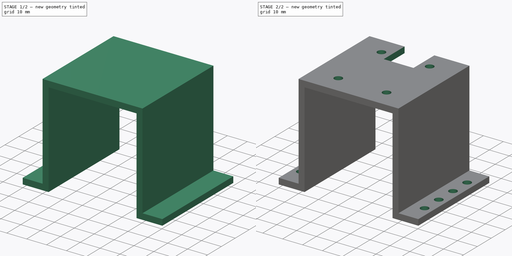
[diagram: build sequence overview — one tinted view per stage of 2, left to right]
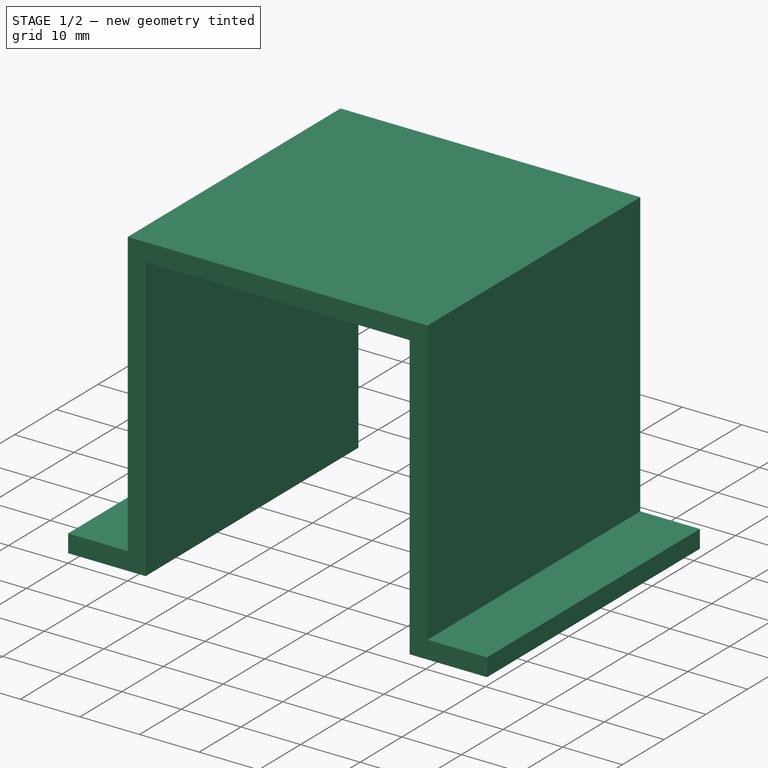
[diagram: stage 1 of 2 — iso view after this stage's code; geometry added in this stage tinted green]
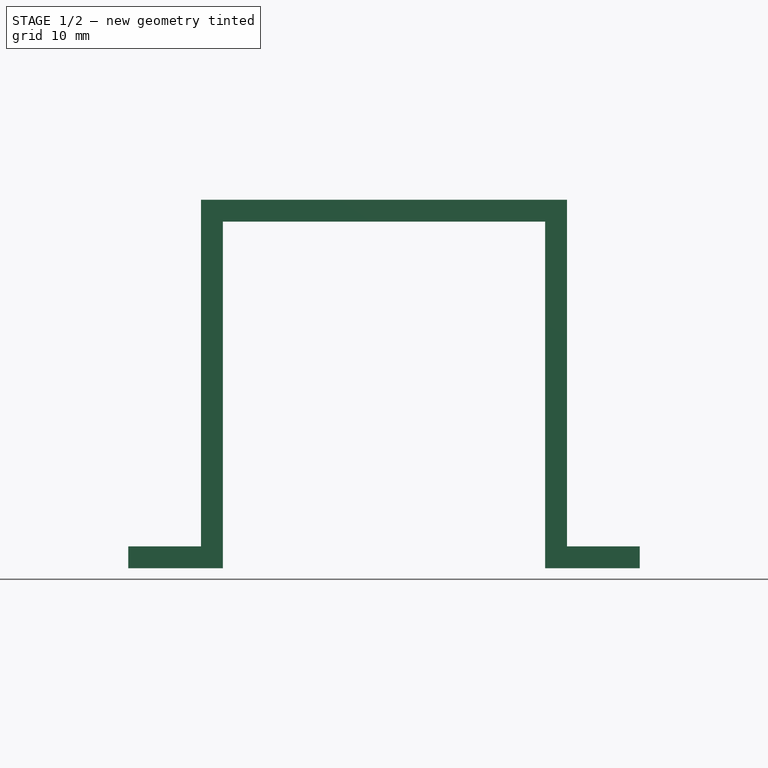
[diagram: stage 1 of 2 — front view after this stage's code; geometry added in this stage tinted green]
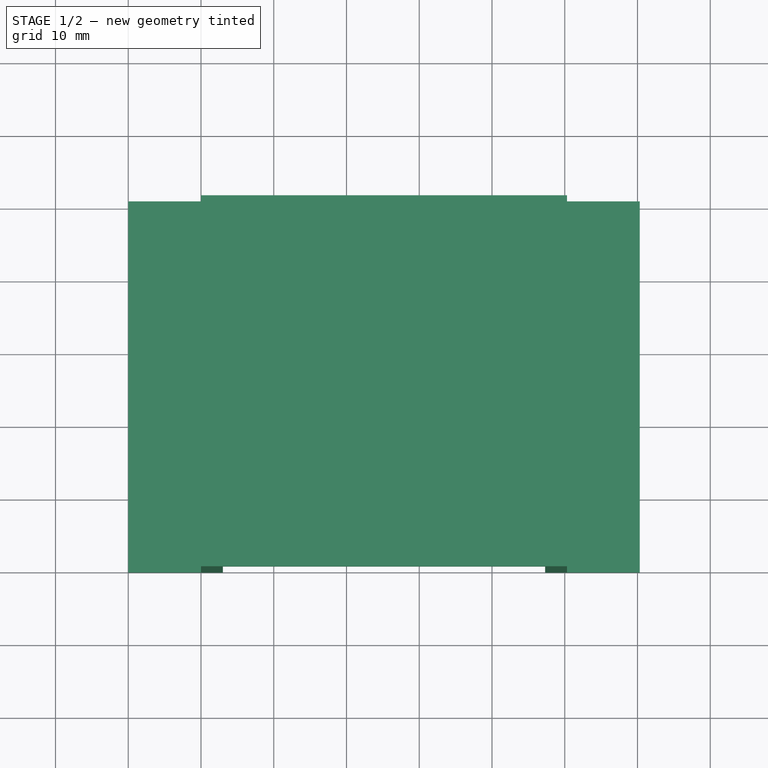
[diagram: stage 1 of 2 — top view after this stage's code; geometry added in this stage tinted green]
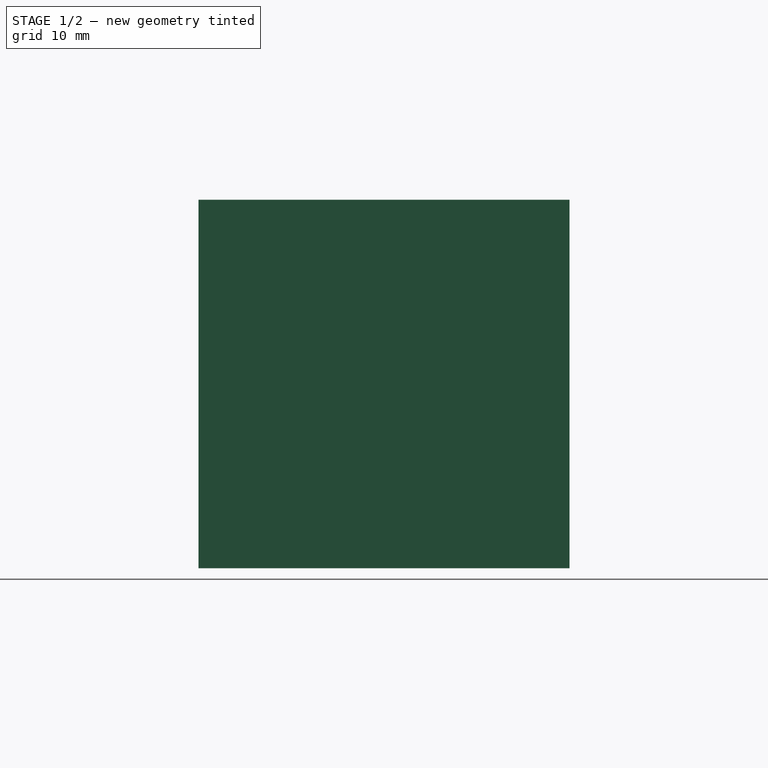
[diagram: stage 1 of 2 — right view after this stage's code; geometry added in this stage tinted green]
FCSTD DOCUMENT  (FreeCAD 0.16R6707 (Git))
Label: support_support_moteur
License: All rights reserved
LicenseURL: http://en.wikipedia.org/wiki/All_rights_reserved
objects: Drawing::FeatureViewPart×4, Sketcher::SketchObject×3, PartDesign::Pocket×2, PartDesign::Pad×1, Drawing::FeaturePage×1
note: 9 computed .brp shape members not serialized (recipe doc carries the construction recipe); baked Part::Feature solids carry a one-line shape summary decoded from their .brp

FEATURE [Sketcher::SketchObject] Sketch
  sketch-geometry (4):
    g0: LineSegment StartX=0 StartY=0 StartZ=0 EndX=70.3 EndY=0 EndZ=0
    g1: LineSegment StartX=70.3 StartY=0 StartZ=0 EndX=70.3 EndY=51 EndZ=0
    g2: LineSegment StartX=70.3 StartY=51 StartZ=0 EndX=0 EndY=51 EndZ=0
    g3: LineSegment StartX=0 StartY=51 StartZ=0 EndX=0 EndY=0 EndZ=0
  constraints (11):
    c: Coincident(g0,g1)
    c: Coincident(g1,g2)
    c: Coincident(g2,g3)
    c: Coincident(g3,g0)
    c: Horizontal(g0)
    c: Horizontal(g2)
    c: Vertical(g1)
    c: Vertical(g3)
    c: Coincident(g0,g-1)
    c: Distance(g2) = 70.3
    c: Distance(g3) = 51
FEATURE [PartDesign::Pad] Pad
  Length = 50.65
  Length2 = 100
  Sketch = -> Sketch
  Type = 0
FEATURE [Sketcher::SketchObject] Sketch001
  Placement = pos=(0,0,0) rot=(1,0,0;1.5708rad)
  Support = -> Pad [Face1]
  sketch-geometry (15):
    g0: GeomPoint [constr] X=13 Y=0 Z=0
    g1: LineSegment StartX=13 StartY=0 StartZ=0 EndX=57.3 EndY=0 EndZ=0
    g2: LineSegment StartX=57.3 StartY=0 StartZ=0 EndX=57.3 EndY=47.65 EndZ=0
    g3: LineSegment StartX=57.3 StartY=47.65 StartZ=0 EndX=13 EndY=47.65 EndZ=0
    g4: LineSegment StartX=13 StartY=47.65 StartZ=0 EndX=13 EndY=0 EndZ=0
    g5: GeomPoint [constr] X=0 Y=3 Z=0
    g6: GeomPoint [constr] X=70.3 Y=3 Z=0
    g7: LineSegment StartX=0 StartY=3 StartZ=0 EndX=10 EndY=3 EndZ=0
    g8: LineSegment StartX=10 StartY=3 StartZ=0 EndX=10 EndY=50.65 EndZ=0
    g9: LineSegment StartX=10 StartY=50.65 StartZ=0 EndX=0 EndY=50.65 EndZ=0
    g10: LineSegment StartX=0 StartY=50.65 StartZ=0 EndX=0 EndY=3 EndZ=0
    g11: LineSegment StartX=70.3 StartY=3 StartZ=0 EndX=60.3 EndY=3 EndZ=0
    g12: LineSegment StartX=60.3 StartY=3 StartZ=0 EndX=60.3 EndY=50.65 EndZ=0
    g13: LineSegment StartX=60.3 StartY=50.65 StartZ=0 EndX=70.3 EndY=50.65 EndZ=0
    g14: LineSegment StartX=70.3 StartY=50.65 StartZ=0 EndX=70.3 EndY=3 EndZ=0
  constraints (39):
    c: PointOnObject(g0,g-1)
    c: DistanceX(g0) = 13
    c: Coincident(g1,g2)
    c: Coincident(g2,g3)
    c: Coincident(g3,g4)
    c: Coincident(g4,g1)
    c: Horizontal(g1)
    c: Horizontal(g3)
    c: Vertical(g2)
    c: Vertical(g4)
    c: Coincident(g1,g0)
    c: Distance(g2) = 47.65
    c: Distance(g3) = 44.3
    c: PointOnObject(g5,g-2)
    c: DistanceY(g6) = 3
    c: DistanceX(g1,g6) = 13
    c: DistanceY(g5) = 3
    c: Coincident(g7,g8)
    c: Coincident(g8,g9)
    c: Coincident(g9,g10)
    c: Coincident(g10,g7)
    c: Horizontal(g7)
    c: Horizontal(g9)
    c: Vertical(g8)
    c: Vertical(g10)
    c: Coincident(g7,g5)
    c: Distance(g9) = 10
    c: Coincident(g11,g12)
    c: Coincident(g12,g13)
    c: Coincident(g13,g14)
    c: Coincident(g14,g11)
    c: Horizontal(g11)
    c: Horizontal(g13)
    c: Vertical(g12)
    c: Vertical(g14)
    c: Coincident(g11,g6)
    c: Distance(g13) = 10
    c: Distance(g8) = 47.65
    c: Distance(g14) = 47.65
FEATURE [PartDesign::Pocket] Pocket
  Length = 5
  Sketch = -> Sketch001
  Type = 1
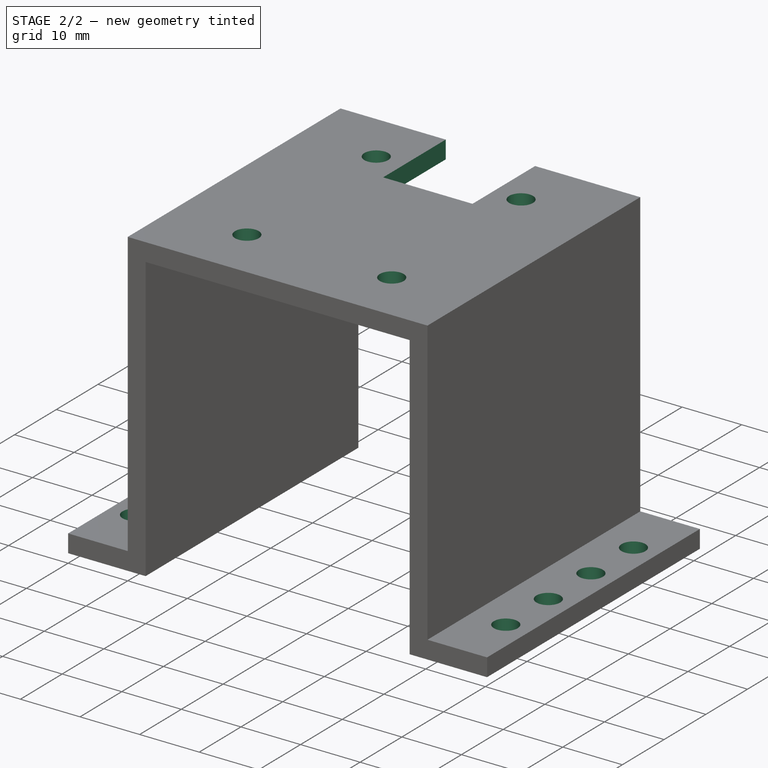
[diagram: stage 2 of 2 — iso view after this stage's code; geometry added in this stage tinted green]
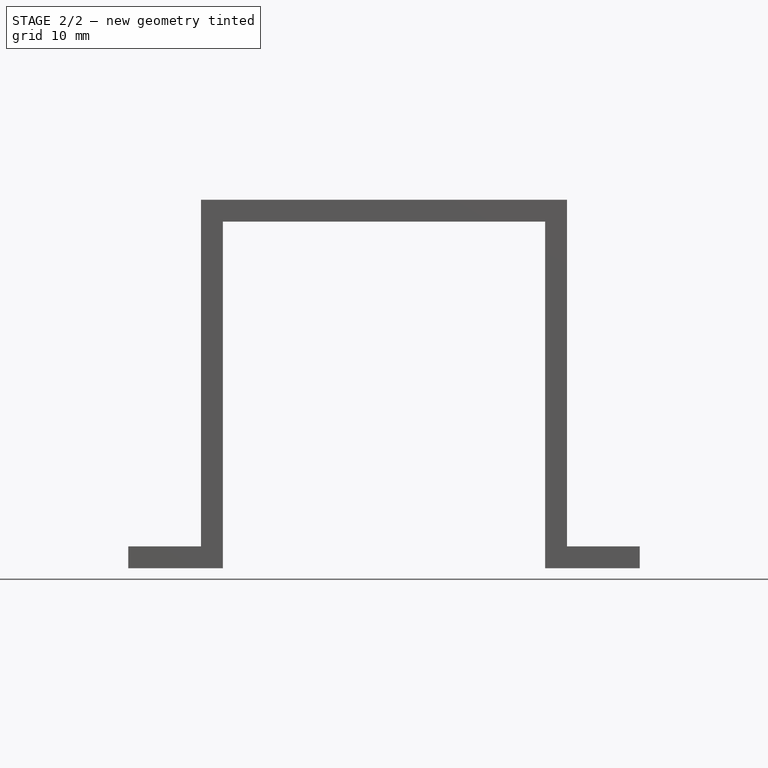
[diagram: stage 2 of 2 — front view after this stage's code; geometry added in this stage tinted green]
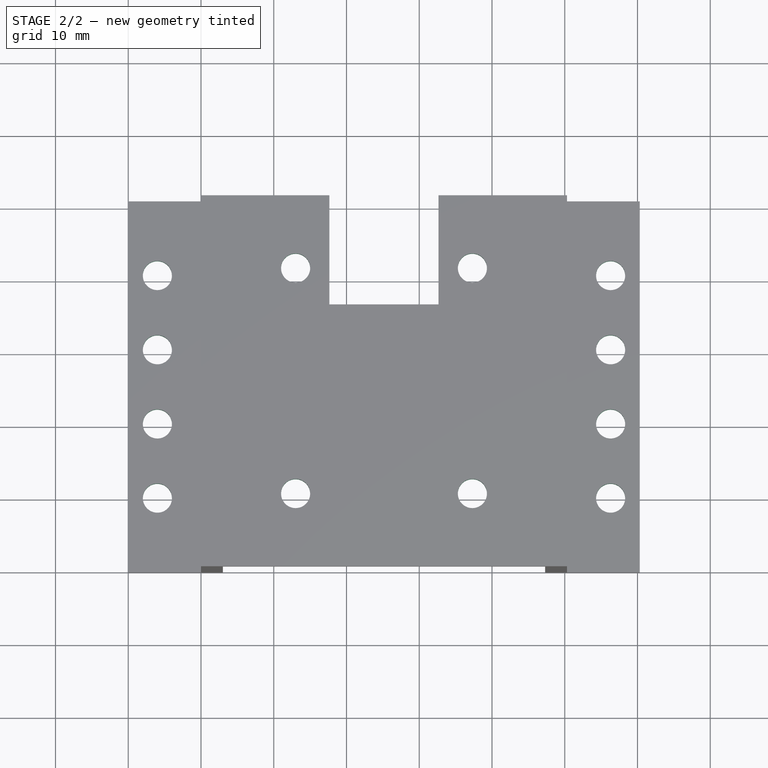
[diagram: stage 2 of 2 — top view after this stage's code; geometry added in this stage tinted green]
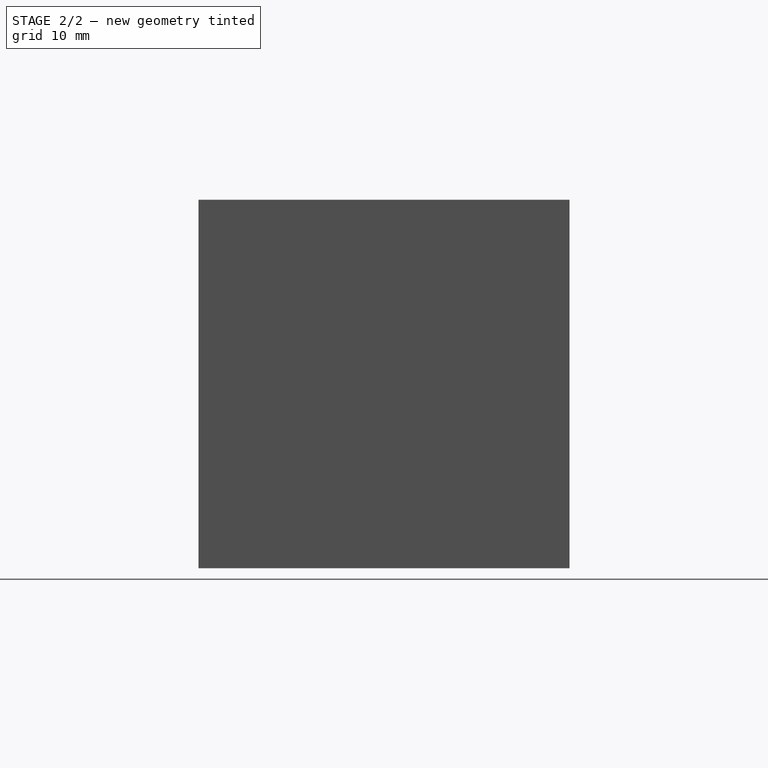
[diagram: stage 2 of 2 — right view after this stage's code; geometry added in this stage tinted green]
FEATURE [Sketcher::SketchObject] Sketch002
  Placement = pos=(0,0,50.65) rot=(0,0,1;0rad)
  Support = -> Pocket [Face10]
  sketch-geometry (30):
    g0: GeomPoint [constr] X=23 Y=10 Z=0
    g1: GeomPoint [constr] X=47.3 Y=10 Z=0
    g2: GeomPoint [constr] X=23 Y=41 Z=0
    g3: GeomPoint [constr] X=47.3 Y=41 Z=0
    g4: GeomPoint [constr] X=4 Y=40.8 Z=0
    g5: GeomPoint [constr] X=4 Y=30.6 Z=0
    g6: GeomPoint [constr] X=4 Y=20.4 Z=0
    g7: GeomPoint [constr] X=66.3 Y=40.8 Z=0
    g8: GeomPoint [constr] X=66.3 Y=30.6 Z=0
    g9: GeomPoint [constr] X=66.3 Y=20.4 Z=0
    g10: GeomPoint [constr] X=66.3 Y=10.2 Z=0
    g11: GeomPoint [constr] X=4 Y=10.2 Z=0
    g12: Circle CenterX=23 CenterY=41 CenterZ=0 NormalX=0 NormalY=0 NormalZ=1 Radius=2
    g13: Circle CenterX=47.3 CenterY=41 CenterZ=0 NormalX=0 NormalY=0 NormalZ=1 Radius=2
    g14: Circle CenterX=23 CenterY=10 CenterZ=0 NormalX=0 NormalY=0 NormalZ=1 Radius=2
    g15: Circle CenterX=47.3 CenterY=10 CenterZ=0 NormalX=0 NormalY=0 NormalZ=1 Radius=2
    g16: Circle CenterX=4 CenterY=40.8 CenterZ=0 NormalX=0 NormalY=0 NormalZ=1 Radius=2
    g17: Circle CenterX=4 CenterY=30.6 CenterZ=0 NormalX=0 NormalY=0 NormalZ=1 Radius=2
    g18: Circle CenterX=4 CenterY=20.4 CenterZ=0 NormalX=0 NormalY=0 NormalZ=1 Radius=2
    g19: Circle CenterX=4 CenterY=10.2 CenterZ=0 NormalX=0 NormalY=0 NormalZ=1 Radius=2
    g20: Circle CenterX=66.3 CenterY=40.8 CenterZ=0 NormalX=0 NormalY=0 NormalZ=1 Radius=2
    g21: Circle CenterX=66.3 CenterY=30.6 CenterZ=0 NormalX=0 NormalY=0 NormalZ=1 Radius=2
    g22: Circle CenterX=66.3 CenterY=20.4 CenterZ=0 NormalX=0 NormalY=0 NormalZ=1 Radius=2
    g23: Circle CenterX=66.3 CenterY=10.2 CenterZ=0 NormalX=0 NormalY=0 NormalZ=1 Radius=2
    g24: GeomPoint [constr] X=35.15 Y=51 Z=0
    g25: GeomPoint [constr] X=42.65 Y=51 Z=0
    g26: LineSegment StartX=42.65 StartY=51 StartZ=0 EndX=27.65 EndY=51 EndZ=0
    g27: LineSegment StartX=27.65 StartY=51 StartZ=0 EndX=27.65 EndY=36 EndZ=0
    g28: LineSegment StartX=27.65 StartY=36 StartZ=0 EndX=42.65 EndY=36 EndZ=0
    g29: LineSegment StartX=42.65 StartY=36 StartZ=0 EndX=42.65 EndY=51 EndZ=0
  constraints (63):
    c: DistanceY(g0) = 10
    c: DistanceY(g0,g2) = 31
    c: DistanceX(g2,g0) = 0
    c: DistanceY(g1) = 10
    c: DistanceY(g1,g3) = 31
    c: DistanceX(g3,g1) = 0
    c: DistanceX(g-1,g0) = 23
    c: DistanceX(g0,g1) = 24.3
    c: Coincident(g12,g2)
    c: Coincident(g13,g3)
    c: Coincident(g14,g0)
    c: Coincident(g15,g1)
    c: Radius(g12) = 2
    c: Radius(g13) = 2
    c: Radius(g14) = 2
    c: Radius(g15) = 2
    c: DistanceY(g11) = 10.2
    c: DistanceY(g11,g6) = 10.2
    c: DistanceY(g6,g5) = 10.2
    c: DistanceY(g5,g4) = 10.2
    c: DistanceY(g10) = 10.2
    c: DistanceY(g10,g9) = 10.2
    c: DistanceY(g9,g8) = 10.2
    c: DistanceY(g8,g7) = 10.2
    c: DistanceX(g4,g5) = 0
    c: DistanceX(g6,g5) = 0
    c: DistanceX(g11,g6) = 0
    c: DistanceX(g8,g7) = 0
    c: DistanceX(g8,g9) = 0
    c: DistanceX(g9,g10) = 0
    c: DistanceX(g-1,g11) = 4
    c: DistanceX(g10) = 66.3
    c: Coincident(g16,g4)
    c: Coincident(g17,g5)
    c: Coincident(g18,g6)
    c: Coincident(g19,g11)
    c: Coincident(g20,g7)
    c: Coincident(g21,g8)
    c: Coincident(g22,g9)
    c: Coincident(g23,g10)
    c: Radius(g16) = 2
    c: Radius(g17) = 2
    c: Radius(g18) = 2
    c: Radius(g19) = 2
    c: Radius(g20) = 2
    c: Radius(g21) = 2
    c: Radius(g22) = 2
    c: Radius(g23) = 2
    c: DistanceY(g24) = 51
    c: DistanceX(g24) = 35.15
    c: DistanceX(g24,g25) = 7.5
    c: DistanceY(g24,g25) = 0
    c: Coincident(g26,g27)
    c: Coincident(g27,g28)
    c: Coincident(g28,g29)
    c: Coincident(g29,g26)
    c: Horizontal(g26)
    c: Horizontal(g28)
    c: Vertical(g27)
    c: Vertical(g29)
    c: Coincident(g26,g25)
    c: Distance(g27) = 15
    c: Distance(g28) = 15
FEATURE [PartDesign::Pocket] Pocket001
  Length = 5
  Sketch = -> Sketch002
  Type = 1
FEATURE [Drawing::FeatureViewPart] Ortho  label="Ortho_0_0"
  Direction = (1,0,0)
  HiddenWidth = 0.15
  LineWidth = 0.35
  Rotation = -90
  ShowHiddenLines = false
  ShowSmoothLines = false
  Source = -> Pocket001
  Tolerance = 0.05
  ViewResult = <blob: 2202 chars omitted>
  Visible = true
  X = 102.9
  Y = 194.983
FEATURE [Drawing::FeatureViewPart] Ortho001  label="Ortho_0_1"
  Direction = (0,0,1)
  HiddenWidth = 0.15
  LineWidth = 0.35
  Rotation = 90
  ShowHiddenLines = false
  ShowSmoothLines = false
  Source = -> Pocket001
  Tolerance = 0.05
  ViewResult = <g id="Ortho_0_1"\n   transform="rotate(90,102.9,42.0167) translate(102.9,42.0167) scale(1,1)"\n  >\n<g   stroke="rgb(0, 0, 0)"\n   stroke-width="0.35"\n   stroke-linecap="butt"\n   stroke-linejoin="miter"\n   fill="none"\n   transform="scale(1,-1)"\n  >\n<path id= "1" d=" M 70.3 6.66134e-16 L 60.3 6.66134e-16 " />\n<path id= "2" d=" M 10 0 L 60.3 0 " />\n<path id= "3" d=" M 0 6.66134e-16 L 10 6.66134e-16 " />\n<path id= "4" d=" M 70.3 6.66134e-16 L 70.3 51 " />\n<path id= "5" d=" M 70.3 51 L 60.3 51 " />\n<circle cx ="66.3" cy ="30.6" r ="2" /><circle cx ="66.3" cy ="20.4" r ="2" /><circle cx ="66.3" cy ="10.2" r ="2" /><circle cx ="66.3" cy ="40.8" r ="2" /><path id= "10" d=" M 60.3 1.12466e-14 L 60.3 51 " />\n<path id= "11" d=" M 60.3 51 L 42.65 51 " />\n<path id= "12" d=" M 42.65 36 L 42.65 51 " />\n<path id= "13" d=" M 27.65 36 L 42.65 36 " />\n<path id= "14" d=" M 27.65 51 L 27.65 36 " />\n<path id= "15" d=" M 27.65 51 L 10 51 " />\n<path id= "16" d=" M 10 1.12466e-14 L 10 51 " />\n<circle cx ="47.3" cy ="41" r ="2" /><circle cx ="23" cy ="41" r ="2" /><circle cx ="23" cy ="10" r ="2" /><circle cx ="47.3" cy ="10" r ="2" /><path id= "21" d=" M 10 6.66134e-16 L 10 51 " />\n<path id= "22" d=" M 0 6.66134e-16 L 0 51 " />\n<path id= "23" d=" M 7.10543e-15 51 L 10 51 " />\n<circle cx ="4" cy ="10.2" r ="2" /><circle cx ="4" cy ="20.4" r ="2" /><circle cx ="4" cy ="40.8" r ="2" /><circle cx ="4" cy ="30.6" r ="2" /></g>\n</g>
  Visible = true
  X = 102.9
  Y = 42.0167
FEATURE [Drawing::FeatureViewPart] Ortho002  label="Ortho_1_1"
  Direction = (0.57735,0.57735,0.57735)
  HiddenWidth = 0.15
  LineWidth = 0.35
  Rotation = 120
  ShowHiddenLines = false
  ShowSmoothLines = false
  Source = -> Pocket001
  Tolerance = 0.05
  ViewResult = <blob: 3878 chars omitted>
  Visible = true
  X = 288.774
  Y = 73.0842
FEATURE [Drawing::FeatureViewPart] Ortho003  label="Ortho_1_0"
  Direction = (0,1,0)
  HiddenWidth = 0.15
  LineWidth = 0.35
  Rotation = -90
  ShowHiddenLines = false
  ShowSmoothLines = false
  Source = -> Pocket001
  Tolerance = 0.05
  ViewResult = <g id="Ortho_1_0"\n   transform="rotate(-90,317.1,194.983) translate(317.1,194.983) scale(1,1)"\n  >\n<g   stroke="rgb(0, 0, 0)"\n   stroke-width="0.35"\n   stroke-linecap="butt"\n   stroke-linejoin="miter"\n   fill="none"\n   transform="scale(1,-1)"\n  >\n<path id= "1" d=" M 0 13 L 0 1.42109e-14 " />\n<path id= "2" d=" M 47.65 13 L 0 13 " />\n<path id= "3" d=" M 47.65 27.65 L 47.65 13 " />\n<path id= "4" d=" M 47.65 27.65 L 47.65 42.65 " />\n<path id= "5" d=" M 47.65 57.3 L 47.65 42.65 " />\n<path id= "6" d=" M -5.66214e-15 57.3 L 47.65 57.3 " />\n<path id= "7" d=" M 0 70.3 L 0 57.3 " />\n<path id= "8" d=" M 0 70.3 L 3 70.3 " />\n<path id= "9" d=" M 3 70.3 L 3 60.3 " />\n<path id= "10" d=" M 3 60.3 L 50.65 60.3 " />\n<path id= "11" d=" M 50.65 60.3 L 50.65 42.65 " />\n<path id= "12" d=" M 50.65 27.65 L 50.65 42.65 " />\n<path id= "13" d=" M 50.65 27.65 L 50.65 10 " />\n<path id= "14" d=" M 3 10 L 50.65 10 " />\n<path id= "15" d=" M 3 7.10543e-15 L 3 10 " />\n<path d="M3,6 L3,5.94986  L3,5.80194  L3,5.56366  L3,5.24698  L3,4.86777  L3,4.44504  L3,4  L3,3.55496  L3,3.13223  L3,2.75302  L3,2.43634  L3,2.19806  L3,2.05014  L3,2 " /><path id= "17" d=" M 0 0 L 3 0 " />\n<path id= "18" d=" M 50.65 27.65 L 47.65 27.65 " />\n<path id= "19" d=" M 50.65 42.65 L 47.65 42.65 " />\n<path id= "20" d=" M 50.65 42.65 L 47.65 42.65 " />\n</g>\n</g>
  Visible = true
  X = 317.1
  Y = 194.983
FEATURE [Drawing::FeaturePage] Page
  EditableTexts = AUTHOR NAME | CREATION DATE | SUPERVISOR NAME | CHECK DATE | SCALE | WEIGHT | NUMBER | SHEET | TITLE | SUBTITLE
  Group = -> [Ortho,Ortho001,Ortho002,Ortho003]
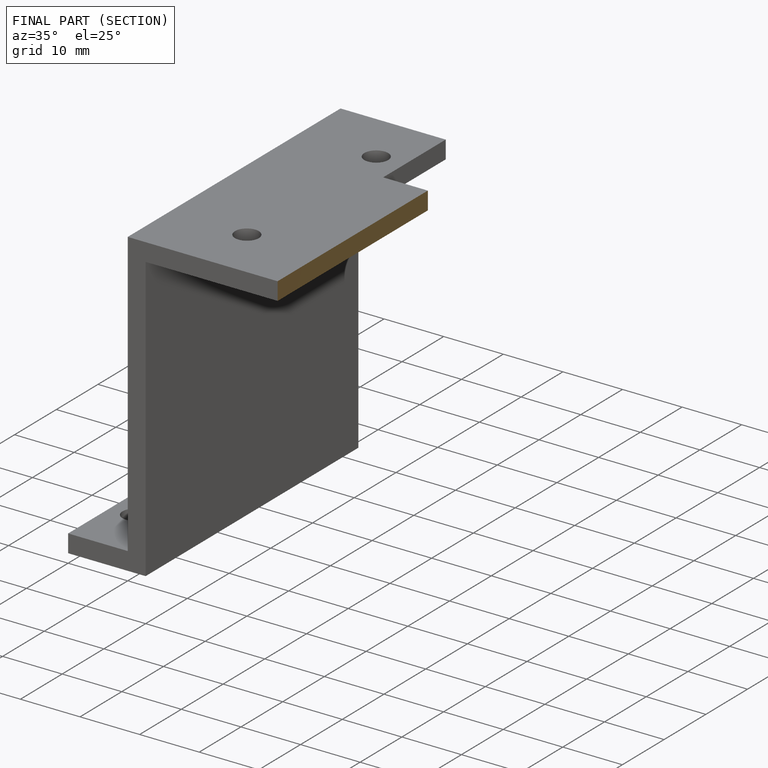
[diagram: finished part — half-section view (interior)]
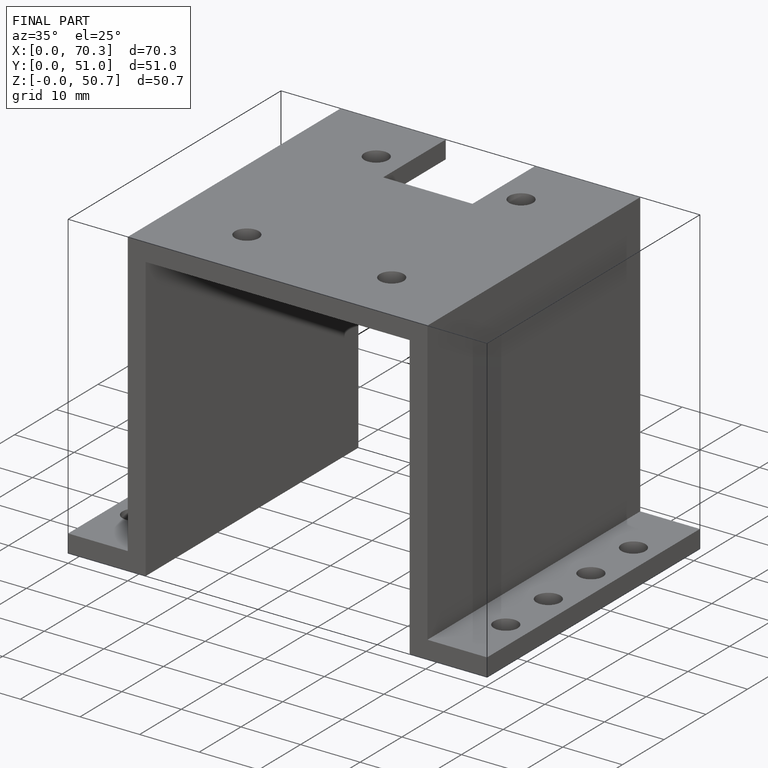
[diagram: finished part — iso view with bounding-box wireframe]
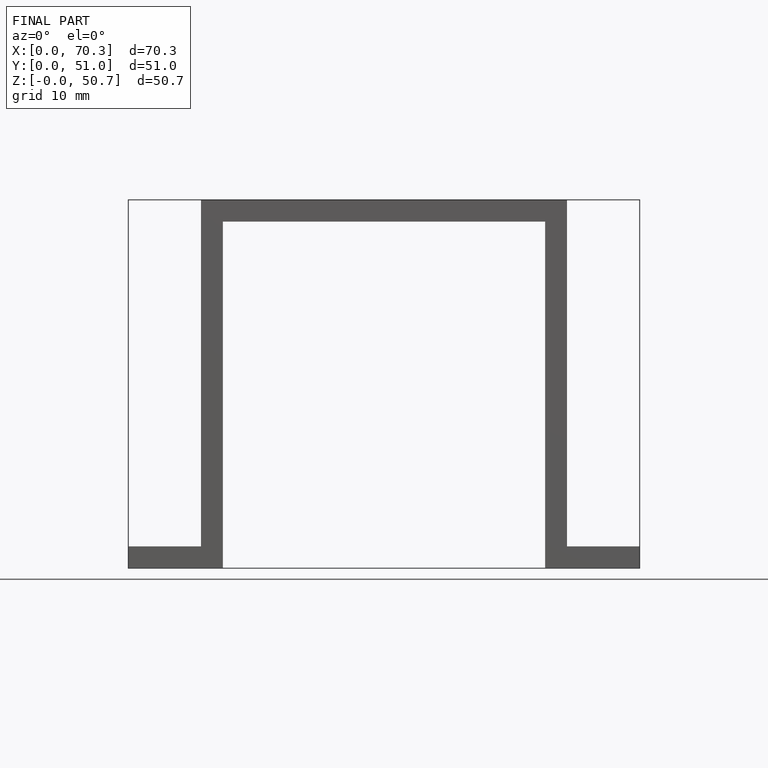
[diagram: finished part — front view with bounding-box wireframe]
